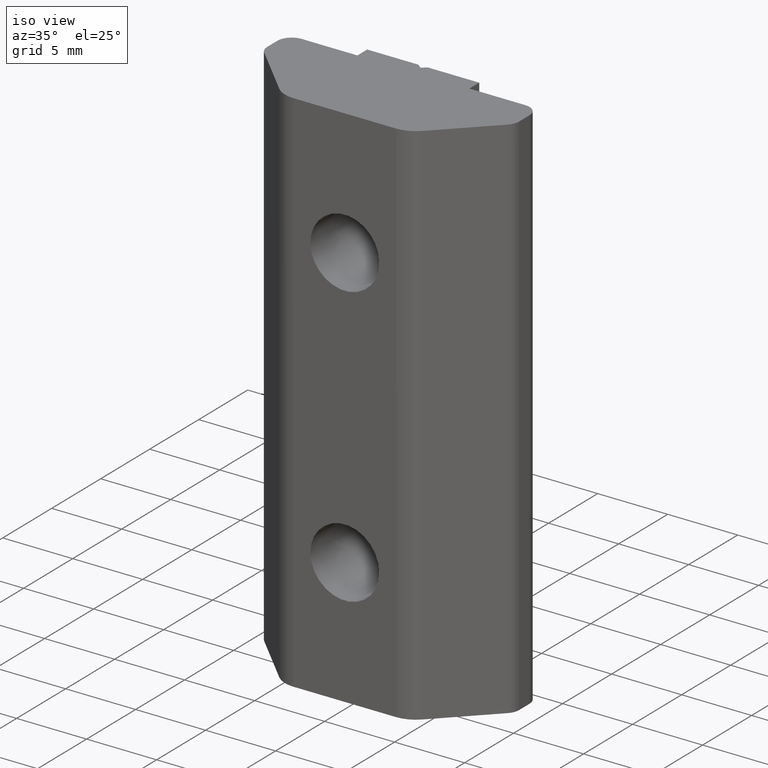
[diagram: clean part render]
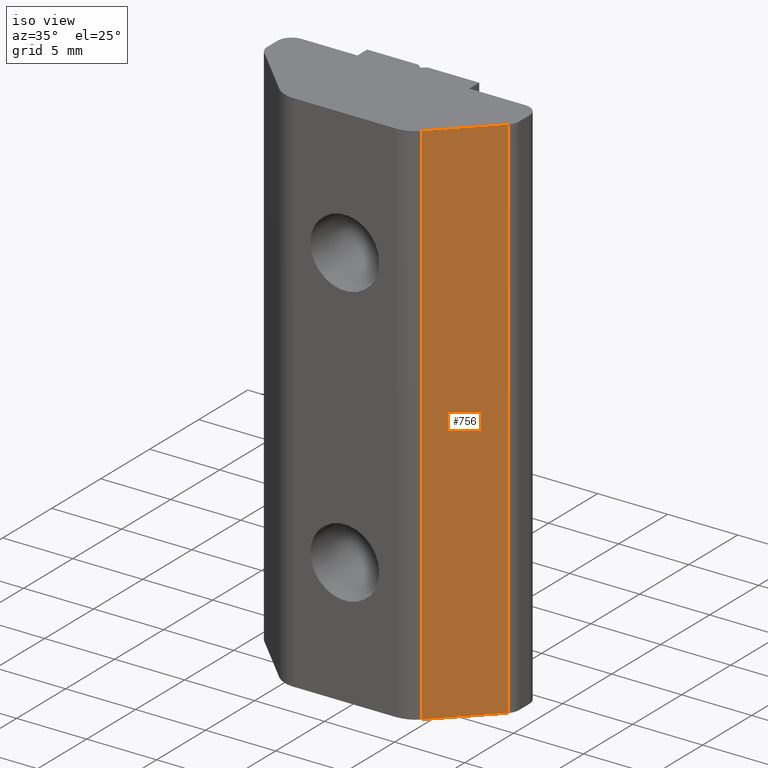
[diagram: same view with one face highlighted and labeled with its STEP entity id]
A machine part, iso view. The second image highlights one B-rep face of the part: STEP entity #756.
In plain terms, the highlighted planar face has unit normal (0.7071, -0.7071, 0).
Its self-contained STEP definition (entity closure, byte-faithful):
#471=CARTESIAN_POINT('',(8.925444915971269,0.957350393001747,-19.0));
#472=VERTEX_POINT('',#471);
#480=CARTESIAN_POINT('',(5.304124575971273,-2.663969946998237,-19.0));
#481=VERTEX_POINT('',#480);
#482=CARTESIAN_POINT('',(5.304124575971271,-2.663969946998237,-19.0));
#483=DIRECTION('',(0.707106781186549,0.707106781186546,0.0));
#484=VECTOR('',#483,5.121320338525535);
#485=LINE('',#482,#484);
#486=EDGE_CURVE('',#481,#472,#485,.T.);
#713=CARTESIAN_POINT('',(8.925444915971269,0.957350393001747,19.0));
#714=VERTEX_POINT('',#713);
#722=CARTESIAN_POINT('',(8.925444915971269,0.957350393001747,19.0));
#723=DIRECTION('',(0.0,0.0,-1.0));
#724=VECTOR('',#723,38.0);
#725=LINE('',#722,#724);
#726=EDGE_CURVE('',#714,#472,#725,.T.);
#733=CARTESIAN_POINT('',(8.925444915971269,0.957350393001747,0.0));
#734=DIRECTION('',(0.707106781186546,-0.707106781186549,0.0));
#735=DIRECTION('',(0.0,0.0,-1.0));
#736=AXIS2_PLACEMENT_3D('',#733,#734,#735);
#737=PLANE('',#736);
#738=CARTESIAN_POINT('',(5.304124575971273,-2.663969946998237,19.0));
#739=VERTEX_POINT('',#738);
#740=CARTESIAN_POINT('',(8.925444915971269,0.957350393001747,19.0));
#741=DIRECTION('',(-0.707106781186549,-0.707106781186546,0.0));
#742=VECTOR('',#741,5.121320338525535);
#743=LINE('',#740,#742);
#744=EDGE_CURVE('',#714,#739,#743,.T.);
#745=ORIENTED_EDGE('',*,*,#744,.T.);
#746=CARTESIAN_POINT('',(5.304124575971273,-2.663969946998237,19.0));
#747=DIRECTION('',(0.0,0.0,-1.0));
#748=VECTOR('',#747,38.0);
#749=LINE('',#746,#748);
#750=EDGE_CURVE('',#739,#481,#749,.T.);
#751=ORIENTED_EDGE('',*,*,#750,.T.);
#752=ORIENTED_EDGE('',*,*,#486,.T.);
#753=ORIENTED_EDGE('',*,*,#726,.F.);
#754=EDGE_LOOP('',(#745,#751,#752,#753));
#755=FACE_OUTER_BOUND('',#754,.T.);
#756=ADVANCED_FACE('',(#755),#737,.T.);